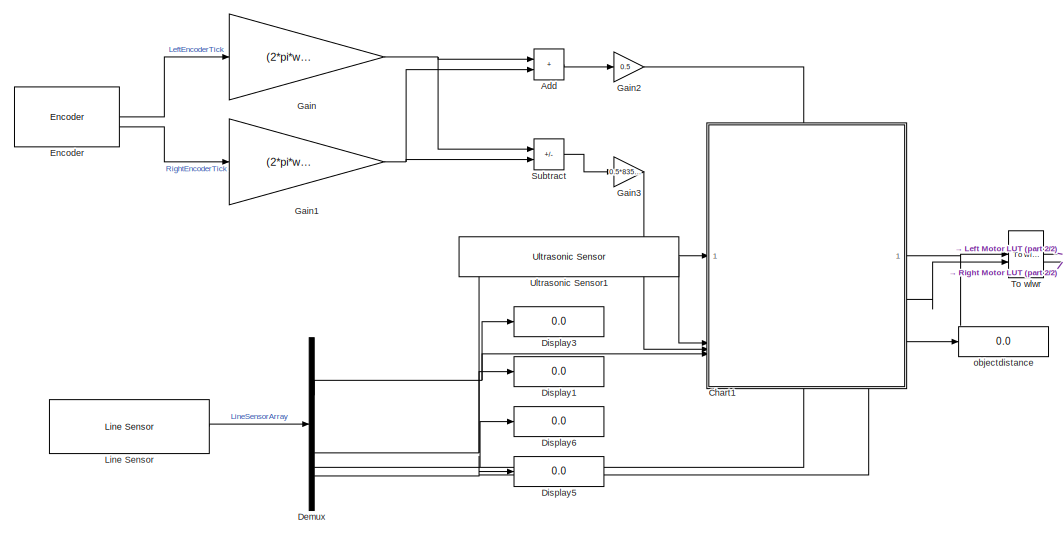
[diagram: root canvas - part 1/2, left side, full height]
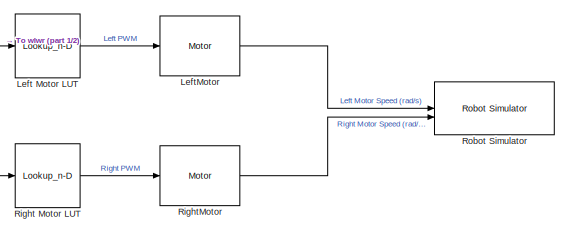
[diagram: root canvas - part 2/2, middle right region]
MODEL slx_65df72bedd09
KIND model
CONFIG AbsTol = auto
CONFIG EnableMultiTasking = off
CONFIG FixedStep = 0.01
CONFIG MaxStep = auto
CONFIG MinStep = auto
CONFIG RelTol = 1e-3
CONFIG SampleTimeConstraint = Unconstrained
CONFIG SolverName = FixedStepDiscrete
CONFIG StartTime = 0.0
CONFIG StopTime = 200
BLOCK [Sum] Add
  IconShape = rectangular
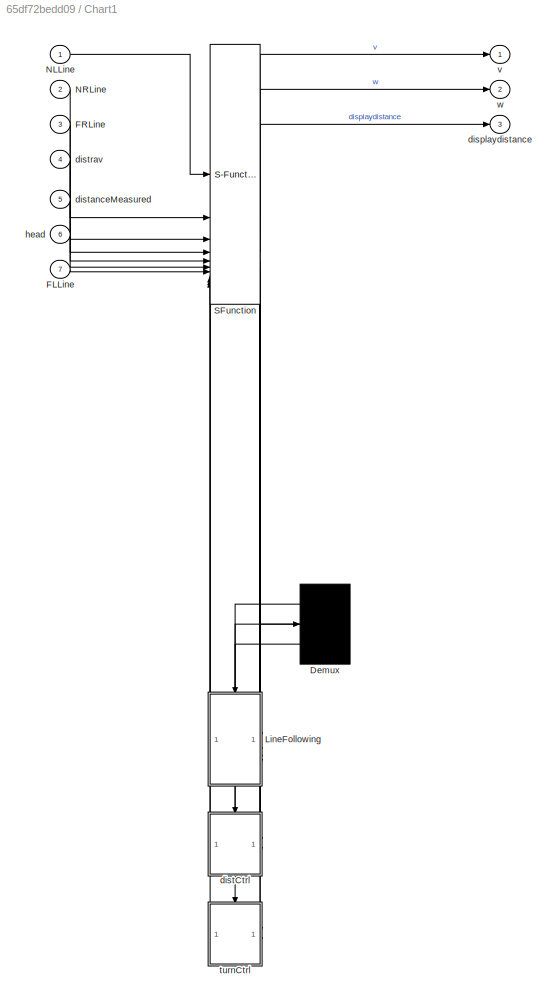
BLOCK [SubSystem] Chart1
  ErrorFcn = Stateflow.Translate.translate
  PermitHierarchicalResolution = ExplicitOnly
  PortSchema = {"entries":[{"content":{"sides":[{"content":{"connectorIds":["In6","In5","In7"]},"type":"ConnectorPlacement.EquallySpacedRectSide","uuid":"27b5da46-073c-4681-8d78-c3525f10231c"},{"content":{"connectorIds":["Out1","Out2","Out3"],"side":"RIGHT"},"type":"ConnectorPlacement.EquallySpacedRectSide","uuid":"84cbede5-d577-43ca-a2b5-5c732f2541a7"},{"content":{"connectorIds":["In4"],"side":"TOP"},"type":"Co...<+432ch>
  SFBlockType = Chart
  TreatAsAtomicUnit = on
BLOCK [Demux] Chart1/ Demux 
  Outputs = 3
BLOCK [S-Function] Chart1/ SFunction 
  EnableBusSupport = on
  FunctionName = sf_sfun
  Parameters = [3 3 3 3 3]
  PortCounts = [10 12]
  SFcnIsStateOwnerBlock = off
  SFunctionDeploymentMode = off
  Tag = Stateflow S-Function 1
BLOCK [Inport] Chart1/FLLine
  Port = 7
BLOCK [Inport] Chart1/FRLine
  Port = 3
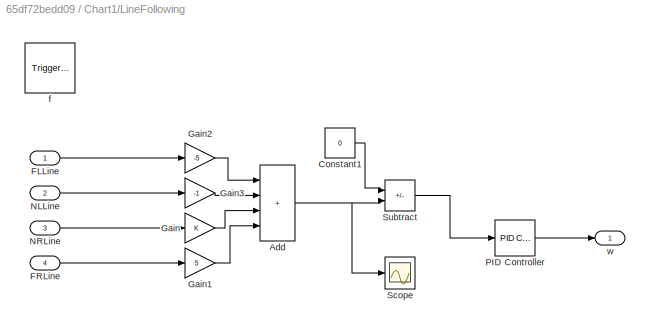
BLOCK [SubSystem] Chart1/LineFollowing
  PreDeleteFcn = Stateflow.SLINSF.SimulinkMan.removePreDeleteFcn
  UndoDeleteFcn = Stateflow.SLINSF.SimulinkMan.restorePreDeleteFcn
BLOCK [Sum] Chart1/LineFollowing/Add
  IconShape = rectangular
  Inputs = ++++
BLOCK [Constant] Chart1/LineFollowing/Constant1
  Value = 0
BLOCK [Inport] Chart1/LineFollowing/FLLine
  OutDataTypeStr = double
  PortDimensions = 1
  SignalType = real
  VarSizeSig = No
BLOCK [Inport] Chart1/LineFollowing/FRLine
  OutDataTypeStr = double
  Port = 4
  PortDimensions = 1
  SignalType = real
  VarSizeSig = No
BLOCK [Gain] Chart1/LineFollowing/Gain
BLOCK [Gain] Chart1/LineFollowing/Gain1
  Gain = 5
BLOCK [Gain] Chart1/LineFollowing/Gain2
  Gain = -5
BLOCK [Gain] Chart1/LineFollowing/Gain3
  Gain = -1
BLOCK [Inport] Chart1/LineFollowing/NLLine
  OutDataTypeStr = double
  Port = 2
  PortDimensions = 1
  SignalType = real
  VarSizeSig = No
BLOCK [Inport] Chart1/LineFollowing/NRLine
  OutDataTypeStr = double
  Port = 3
  PortDimensions = 1
  SignalType = real
  VarSizeSig = No
BLOCK [Reference] Chart1/LineFollowing/PID Controller  REF=slpidlib/PID Controller
  LibrarySourceBlock = simulink/Continuous/PID Controller
  SourceBlock = slpidlib/PID Controller
  SourceType = PID 1dof
BLOCK [Scope] Chart1/LineFollowing/Scope
  Floating = off
  NumInputPorts = 1
  ScopeSpecificationString = Simulink.scopes.TimeScopeBlockCfg('CurrentConfiguration', extmgr.ConfigurationSet(extmgr.Configuration('Core','General UI',true),extmgr.Configuration('Core','Source UI',true),extmgr.Configuration('Sources','WiredSimulink',true,'DataLoggingVariableName','ScopeData1'),extmgr.Configuration('Visuals','Time Domain',true,'SerializedDisplays',{struct('MinYLimReal','-5750.00000','MaxYLimReal','1750.00000'...<+1413ch>
BLOCK [Sum] Chart1/LineFollowing/Subtract
  IconShape = rectangular
  Inputs = +-
BLOCK [TriggerPort] Chart1/LineFollowing/f
  CopyFcn = Stateflow.SLINSF.SimulinkMan.removeBlockPreDeleteFcn
  PreDeleteFcn = Stateflow.SLINSF.SimulinkMan.unsafePredeleteFcn
  StatesWhenEnabling = held
  TriggerType = function-call
  VariantControl = (inherit)
BLOCK [Outport] Chart1/LineFollowing/w
BLOCK [Inport] Chart1/NLLine
BLOCK [Inport] Chart1/NRLine
  Port = 2
BLOCK [Outport] Chart1/displaydistance
  Port = 3
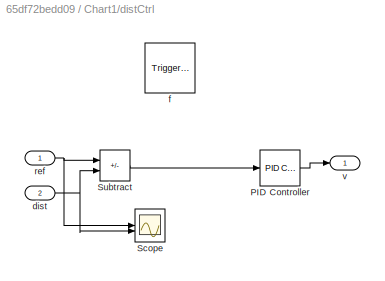
BLOCK [SubSystem] Chart1/distCtrl
  PreDeleteFcn = Stateflow.SLINSF.SimulinkMan.removePreDeleteFcn
  UndoDeleteFcn = Stateflow.SLINSF.SimulinkMan.restorePreDeleteFcn
BLOCK [Reference] Chart1/distCtrl/PID Controller  REF=slpidlib/PID Controller
  LibrarySourceBlock = simulink/Continuous/PID Controller
  SourceBlock = slpidlib/PID Controller
  SourceType = PID 1dof
BLOCK [Scope] Chart1/distCtrl/Scope
  Floating = off
  NumInputPorts = 2
  ScopeSpecificationString = Simulink.scopes.TimeScopeBlockCfg('CurrentConfiguration', extmgr.ConfigurationSet(extmgr.Configuration('Core','General UI',true),extmgr.Configuration('Core','Source UI',true),extmgr.Configuration('Sources','WiredSimulink',true,'DataLoggingVariableName','ScopeData1'),extmgr.Configuration('Visuals','Time Domain',true,'SerializedDisplays',{struct('MinYLimReal','0.81977','MaxYLimReal','0.90015','YLabe...<+1439ch>
BLOCK [Sum] Chart1/distCtrl/Subtract
  IconShape = rectangular
  Inputs = +-
BLOCK [Inport] Chart1/distCtrl/dist
  OutDataTypeStr = double
  Port = 2
  PortDimensions = 1
  SignalType = real
  VarSizeSig = No
BLOCK [TriggerPort] Chart1/distCtrl/f
  CopyFcn = Stateflow.SLINSF.SimulinkMan.removeBlockPreDeleteFcn
  PreDeleteFcn = Stateflow.SLINSF.SimulinkMan.unsafePredeleteFcn
  StatesWhenEnabling = held
  TriggerType = function-call
  VariantControl = (inherit)
BLOCK [Inport] Chart1/distCtrl/ref
  OutDataTypeStr = double
  PortDimensions = 1
  SignalType = real
  VarSizeSig = No
BLOCK [Outport] Chart1/distCtrl/v
BLOCK [Inport] Chart1/distanceMeasured
  Port = 5
BLOCK [Inport] Chart1/distrav
  Port = 4
BLOCK [Inport] Chart1/head
  Port = 6
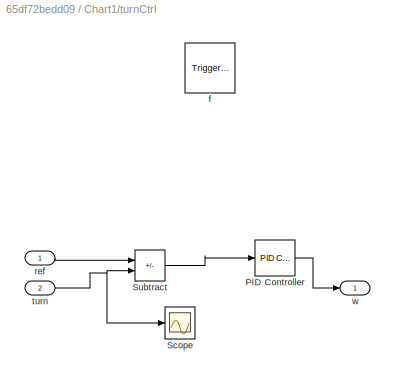
BLOCK [SubSystem] Chart1/turnCtrl
  PreDeleteFcn = Stateflow.SLINSF.SimulinkMan.removePreDeleteFcn
  UndoDeleteFcn = Stateflow.SLINSF.SimulinkMan.restorePreDeleteFcn
BLOCK [Reference] Chart1/turnCtrl/PID Controller  REF=slpidlib/PID Controller
  LibrarySourceBlock = simulink/Continuous/PID Controller
  SourceBlock = slpidlib/PID Controller
  SourceType = PID 1dof
BLOCK [Scope] Chart1/turnCtrl/Scope
  Floating = off
  NumInputPorts = 1
  ScopeSpecificationString = Simulink.scopes.TimeScopeBlockCfg('CurrentConfiguration', extmgr.ConfigurationSet(extmgr.Configuration('Core','General UI',true),extmgr.Configuration('Core','Source UI',true),extmgr.Configuration('Sources','WiredSimulink',true),extmgr.Configuration('Visuals','Time Domain',true,'SerializedDisplays',{struct('MinYLimReal','84.07486','MaxYLimReal','114.96706','YLabelReal','','MinYLimMag','84.07486','M...<+1411ch>
BLOCK [Sum] Chart1/turnCtrl/Subtract
  IconShape = rectangular
  Inputs = +-
BLOCK [TriggerPort] Chart1/turnCtrl/f
  CopyFcn = Stateflow.SLINSF.SimulinkMan.removeBlockPreDeleteFcn
  PreDeleteFcn = Stateflow.SLINSF.SimulinkMan.unsafePredeleteFcn
  StatesWhenEnabling = held
  TriggerType = function-call
  VariantControl = (inherit)
BLOCK [Inport] Chart1/turnCtrl/ref
  OutDataTypeStr = double
  PortDimensions = 1
  SignalType = real
  VarSizeSig = No
BLOCK [Inport] Chart1/turnCtrl/turn
  OutDataTypeStr = double
  Port = 2
  PortDimensions = 1
  SignalType = real
  VarSizeSig = No
BLOCK [Outport] Chart1/turnCtrl/w
BLOCK [Outport] Chart1/v
BLOCK [Outport] Chart1/w
  Port = 2
BLOCK [Demux] Demux
BLOCK [Display] Display1
  Decimation = 1
BLOCK [Display] Display3
  Decimation = 1
BLOCK [Display] Display5
  Decimation = 1
BLOCK [Display] Display6
  Decimation = 1
BLOCK [Reference] Encoder  REF=mobileRoboticsTrainingLib/Encoder
  SourceBlock = mobileRoboticsTrainingLib/Encoder
  SourceProductName = Mobile Robotics Training Library
  SourceType = Encoder Simulation
BLOCK [Gain] Gain
  Gain = (2*pi*wheelR)/ticksPerRot
BLOCK [Gain] Gain1
  Gain = (2*pi*wheelR)/ticksPerRot
BLOCK [Gain] Gain2
  Gain = 0.5
BLOCK [Gain] Gain3
  Gain = 0.5*835.60095
BLOCK [Lookup_n-D] Left Motor LUT
  BreakpointsForDimension1 = WheelSpeed
  ExtrapMethod = Clip
  InputPortMap = u0
  InternalRulePriority = Speed
  InterpMethod = Nearest
  NumberOfTableDimensions = 1
  RndMeth = Simplest
  Table = InputPWM
BLOCK [Reference] LeftMotor  REF=mobileRoboticsTrainingLib/Motor
  SourceBlock = mobileRoboticsTrainingLib/Motor
  SourceProductName = Mobile Robotics Training Library
  SourceType = Motor Model
BLOCK [Reference] Line Sensor  REF=mobileRoboticsTrainingLib/Line Sensor
  SourceBlock = mobileRoboticsTrainingLib/Line Sensor
  SourceProductName = Mobile Robotics Training Library
  SourceType = Line Sensor Simulation
BLOCK [Lookup_n-D] Right Motor LUT
  BreakpointsForDimension1 = WheelSpeed
  ExtrapMethod = Clip
  InputPortMap = u0
  InternalRulePriority = Speed
  InterpMethod = Nearest
  NumberOfTableDimensions = 1
  RndMeth = Simplest
  Table = InputPWM
BLOCK [Reference] RightMotor  REF=mobileRoboticsTrainingLib/Motor
  SourceBlock = mobileRoboticsTrainingLib/Motor
  SourceProductName = Mobile Robotics Training Library
  SourceType = Motor Model
BLOCK [Reference] Robot Simulator  REF=mobileRoboticsTrainingLib/Robot Simulator
  Priority = 99
  SourceBlock = mobileRoboticsTrainingLib/Robot Simulator
  SourceProductName = Mobile Robotics Training Library
  SourceType = Robot Simulator
BLOCK [Sum] Subtract
  IconShape = rectangular
  Inputs = +-
BLOCK [Reference] To wlwr  REF=mobileRoboticsTrainingLib/To wlwr
  SourceBlock = mobileRoboticsTrainingLib/To wlwr
  SourceProductName = Mobile Robotics Training Library
  SourceType = To wlwr
BLOCK [Reference] Ultrasonic Sensor1  REF=mobileRoboticsTrainingLib/Ultrasonic Sensor
  SourceBlock = mobileRoboticsTrainingLib/Ultrasonic Sensor
  SourceProductName = Mobile Robotics Training Library
  SourceType = Ultrasonic Sensor Simulation
BLOCK [Display] objectdistance
  Decimation = 1
LINE Add:1 -> Gain2:1
LINE Chart1:1 -> To wlwr:1
LINE Chart1:2 -> To wlwr:2
LINE Chart1:3 -> objectdistance:1
NET Demux:1 -> Chart1:7, Display3:1
NET Demux:2 -> Chart1:1, Display1:1
NET Demux:3 -> Chart1:2, Display6:1
NET Demux:4 -> Chart1:3, Display5:1
LINE Encoder:1 -> Gain:1
LINE Encoder:2 -> Gain1:1
NET Gain1:1 -> Add:2, Subtract:2
LINE Gain2:1 -> Chart1:4
LINE Gain3:1 -> Chart1:6
NET Gain:1 -> Add:1, Subtract:1
LINE Left Motor LUT:1 -> LeftMotor:1
LINE LeftMotor:1 -> Robot Simulator:1
LINE Line Sensor:1 -> Demux:1
LINE Right Motor LUT:1 -> RightMotor:1
LINE RightMotor:1 -> Robot Simulator:2
LINE Subtract:1 -> Gain3:1
LINE To wlwr:1 -> Left Motor LUT:1
LINE To wlwr:2 -> Right Motor LUT:1
LINE Ultrasonic Sensor1:1 -> Chart1:5
note: NET lines group one-source signal fan-out (src -> all destinations, sorted); 1:1 wires keep LINE
CHART Chart1 states=40 transitions=45
  STATE_LABEL 'w = LineFollowing(FLLine, NLLine, NRLine, FRLine)'
  STATE_LABEL 'w = turnCtrl(ref,turn)'
  STATE_LABEL 'v = distCtrl(ref,dist)'
  STATE_LABEL 'Variables\nentry:\ncurrent=1\nturn=0'
  STATE_LABEL 'TurnR\nentry:\nv=0\nturn=turn+1\niHead=head\nduring:\nw=turnCtrl(90, head - iHead)\n'
  STATE_LABEL 'MoveL1\nentry:\n v=0.3\nduring:\nw =LineFollowing(FLLine, NLLine, NRLine, FRLine)\n'
  STATE_LABEL 'TurnL\nentry:\nv=0\nturn=turn+1\niHead=head\nduring:\nw=turnCtrl(-90, head - iHead)\n'
  STATE_LABEL 'MoveR1\nentry:\n v=0.3\nduring:\nw =LineFollowing(FLLine, NLLine, NRLine, FRLine)\n'
  STATE_LABEL 'LeftIntersect\nentry:\niDist=distrav\nw=0\nduring:\nv=distCtrl(iDist+0.0643,distrav)\n'
  STATE_LABEL 'Start\nentry:\n v=0.3\nduring:\nw =LineFollowing(FLLine, NLLine, NRLine, FRLine)\n'
  STATE_LABEL 'DetectlineR\nentry:\nv=0\nw=0\n'
  STATE_LABEL 'RightIntersect\nentry:\niDist=distrav\nw=0\nduring:\nv=distCtrl(iDist+0.0643,distrav)\n'
  STATE_LABEL 'DetectlineL\nentry:\nv=0\nw=0\n'
  STATE_LABEL 'deadendR1\nentry:\nv=0\nw=0\ncurrent=current+1'
  STATE_LABEL 'deadendR\nentry:\nv=0\nw=0\ncurrent = current+1'
  STATE_LABEL 'Detectline\nentry:\nv=0\nw=0\n'
  STATE_LABEL 'MoveR2\nentry:\n v=0.3\nduring:\nw =LineFollowing(FLLine, NLLine, NRLine, FRLine)\n'
  STATE_LABEL 'MoveL2\nentry:\n v=0.3\nduring:\nw =LineFollowing(FLLine, NLLine, NRLine, FRLine)\n'
  STATE_LABEL 'TurnR1\nentry:\nv=0\niHead=head\nduring:\nw=turnCtrl(90, head - iHead)\n'
  STATE_LABEL 'TurnL1\nentry:\nv=0\niHead=head\nduring:\nw=turnCtrl(-90, head - iHead)\n'
  STATE_LABEL 'RightIntersect1\nentry:\niDist=distrav\nw=0\nduring:\nv=distCtrl(iDist+0.0643,distrav)'
  STATE_LABEL 'LeftIntersect1\nentry:\niDist=distrav\nw=0\nduring:\nv=distCtrl(iDist+0.0643,distrav)\n'
  STATE_LABEL 'savedistobjectR\nentry:\nobjectdist(current)=distanceMeasured\ndisplaydistance=distanceMeasured\ncurrent=current + 1\n'
  STATE_LABEL 'savedistobjectL\nentry:\nobjectdist(current)=distanceMeasured\ndisplaydistance=distanceMeasured\ncurrent=current + 1\n'
  STATE_LABEL 'UturnR\nentry:\niHead=head\nduring:\nw=turnCtrl(180, head - iHead)'
  STATE_LABEL 'UturnL\nentry:\niHead=head\nduring:\nw=turnCtrl(180, head - iHead)'
  STATE_LABEL 'InitialmoveR\nentry:\nv=0.3'
  STATE_LABEL 'InitialmoveL\nentry:\nv=0.3'
  STATE_LABEL 'Uturnend\nentry:\niHead=head\nduring:\nw=turnCtrl(180, head - iHead)\nshort = min(objectdist)\ndisplaydistance=short(1)\nSturn = find(objectdist==short)\nignore = 1+turn-Sturn(1)\n'
  STATE_LABEL 'MoveL3\nentry:\n v=0.3\nduring:\nw =LineFollowing(FLLine, NLLine, NRLine, FRLine)\n'
  STATE_LABEL 'MoveRFinal\nentry:\n v=0.3\nduring:\nw =LineFollowing(FLLine, NLLine, NRLine, FRLine)\n'
  STATE_LABEL 'MoveFinal\nentry:\nv=0.3\nduring:\nw =LineFollowing(FLLine, NLLine, NRLine, FRLine)'
  STATE_LABEL 'TurnL2\nentry:\nv=0\nturn=turn+1\niHead=head\nduring:\nw=turnCtrl(-90, head - iHead)\n'
  STATE_LABEL 'TurnRFinal\nentry:\nv=0\nturn=turn+1\niHead=head\nduring:\nw=turnCtrl(90, head - iHead)\n'
  STATE_LABEL 'LeftIntersectFinal\nentry:\niDist=distrav\nw=0\nignore = ignore-1\nduring:\nv=distCtrl(iDist+0.0643,distrav)'
  STATE_LABEL 'RightIntersectFinal\nentry:\niDist=distrav\nw=0\nignore = ignore-1\nduring:\nv=distCtrl(iDist+0.0643,distrav)'
  STATE_LABEL 'DetectlineLFinal\nentry:\nv=0\nw=0\n'
  STATE_LABEL 'DetectlineRFinal\nentry:\nv=0\nw=0\n'
  STATE_LABEL 'PastTurnL\nv=0.24'
  STATE_LABEL 'PastTurnR\nv=0.24'
CHART  states=0 transitions=0
